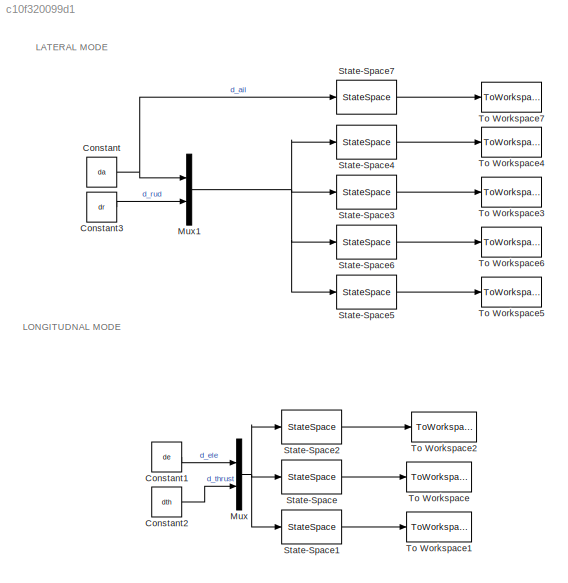
MODEL slx_c10f320099d1
KIND model
CONFIG AbsTol = auto
CONFIG EnableMultiTasking = off
CONFIG FixedStep = dt
CONFIG MaxStep = auto
CONFIG MinStep = auto
CONFIG RelTol = 1e-3
CONFIG SampleTimeConstraint = Unconstrained
CONFIG Solver = ode4
CONFIG SolverName = ode4
CONFIG StartTime = 0.0
CONFIG StopTime = tfinal
BLOCK [Constant] Constant
  Value = da
BLOCK [Constant] Constant1
  Value = de
BLOCK [Constant] Constant2
  Value = dth
BLOCK [Constant] Constant3
  Value = dr
BLOCK [Mux] Mux
  DisplayOption = bar
  Inputs = 2
  Ports = [2, 1]
BLOCK [Mux] Mux1
  DisplayOption = bar
  Inputs = 2
  Ports = [2, 1]
BLOCK [StateSpace] State-Space
  A = A_FL
  B = B_FL
  C = C_FL
  D = D_FL
  InitialCondition = [s0(1),s0(3),s0(5),s0(8)]
  Ports = [1, 1]
BLOCK [StateSpace] State-Space1
  A = A_LP
  B = B_LP
  C = C_LP
  D = D_LP
  InitialCondition = [s0(1),s0(8)]
  Ports = [1, 1]
BLOCK [StateSpace] State-Space2
  A = A_SP
  B = B_SP
  C = C_SP
  D = D_SP
  InitialCondition = [s0(3),s0(5)]
  Ports = [1, 1]
BLOCK [StateSpace] State-Space3
  A = A_lat
  B = B_lat
  C = C_lat
  D = D_lat
  InitialCondition = [aircraft_data(20),s0(4),s0(6),s0(7),s0(9)]
  Ports = [1, 1]
BLOCK [StateSpace] State-Space4
  A = A_Sp
  B = B_Sp
  C = C_Sp
  D = D_Sp
  InitialCondition = [s0(4),s0(6),s0(7)]
  Ports = [1, 1]
BLOCK [StateSpace] State-Space5
  A = A_DR
  B = B_DR
  C = C_DR
  D = D_DR
  InitialCondition = [aircraft_data(20),s0(4),s0(6)]
  Ports = [1, 1]
BLOCK [StateSpace] State-Space6
  A = A_2D
  B = B_2D
  C = C_2D
  D = D_2D
  InitialCondition = [aircraft_data(20),s0(6)]
  Ports = [1, 1]
BLOCK [StateSpace] State-Space7
  A = A_RO
  B = B_RO
  C = C_RO
  D = D_RO
  InitialCondition = [s0(4)]
  Ports = [1, 1]
BLOCK [ToWorkspace] To Workspace
  FixptAsFi = on
  MaxDataPoints = inf
  Ports = [1]
  SampleTime = -1
  Save2DSignal = 2-D array (concatenate along first dimension)
  VariableName = fullLong
BLOCK [ToWorkspace] To Workspace1
  FixptAsFi = on
  MaxDataPoints = inf
  Ports = [1]
  SampleTime = -1
  Save2DSignal = 2-D array (concatenate along first dimension)
  VariableName = longPeriod
BLOCK [ToWorkspace] To Workspace2
  FixptAsFi = on
  MaxDataPoints = inf
  Ports = [1]
  SampleTime = -1
  Save2DSignal = 2-D array (concatenate along first dimension)
  VariableName = shortPeriod
BLOCK [ToWorkspace] To Workspace3
  FixptAsFi = on
  MaxDataPoints = inf
  Ports = [1]
  SampleTime = -1
  Save2DSignal = 2-D array (concatenate along first dimension)
  VariableName = fullLat
BLOCK [ToWorkspace] To Workspace4
  FixptAsFi = on
  MaxDataPoints = inf
  Ports = [1]
  SampleTime = -1
  Save2DSignal = 2-D array (concatenate along first dimension)
  VariableName = SP
BLOCK [ToWorkspace] To Workspace5
  FixptAsFi = on
  MaxDataPoints = inf
  Ports = [1]
  SampleTime = -1
  Save2DSignal = 2-D array (concatenate along first dimension)
  VariableName = DR
BLOCK [ToWorkspace] To Workspace6
  FixptAsFi = on
  MaxDataPoints = inf
  Ports = [1]
  SampleTime = -1
  Save2DSignal = 2-D array (concatenate along first dimension)
  VariableName = DOF2
BLOCK [ToWorkspace] To Workspace7
  FixptAsFi = on
  MaxDataPoints = inf
  Ports = [1]
  SampleTime = -1
  Save2DSignal = 2-D array (concatenate along first dimension)
  VariableName = DOF1
ANNOTATION (root): LATERAL MODE
ANNOTATION (root): LONGITUDNAL MODE
LINE Constant1:1 -> Mux:1
LINE Constant2:1 -> Mux:2
LINE Constant3:1 -> Mux1:2
NET Constant:1 -> Mux1:1, State-Space7:1
NET Mux1:1 -> State-Space3:1, State-Space4:1, State-Space5:1, State-Space6:1
NET Mux:1 -> State-Space1:1, State-Space2:1, State-Space:1
LINE State-Space1:1 -> To Workspace1:1
LINE State-Space2:1 -> To Workspace2:1
LINE State-Space3:1 -> To Workspace3:1
LINE State-Space4:1 -> To Workspace4:1
LINE State-Space5:1 -> To Workspace5:1
LINE State-Space6:1 -> To Workspace6:1
LINE State-Space7:1 -> To Workspace7:1
LINE State-Space:1 -> To Workspace:1
note: NET lines group one-source signal fan-out (src -> all destinations, sorted); 1:1 wires keep LINE
